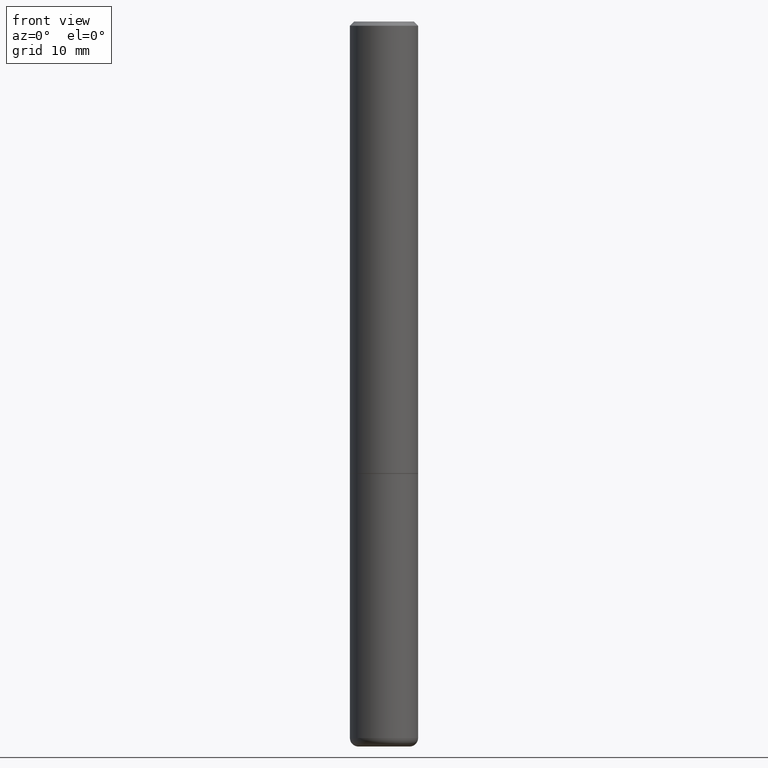
[diagram: clean part render]
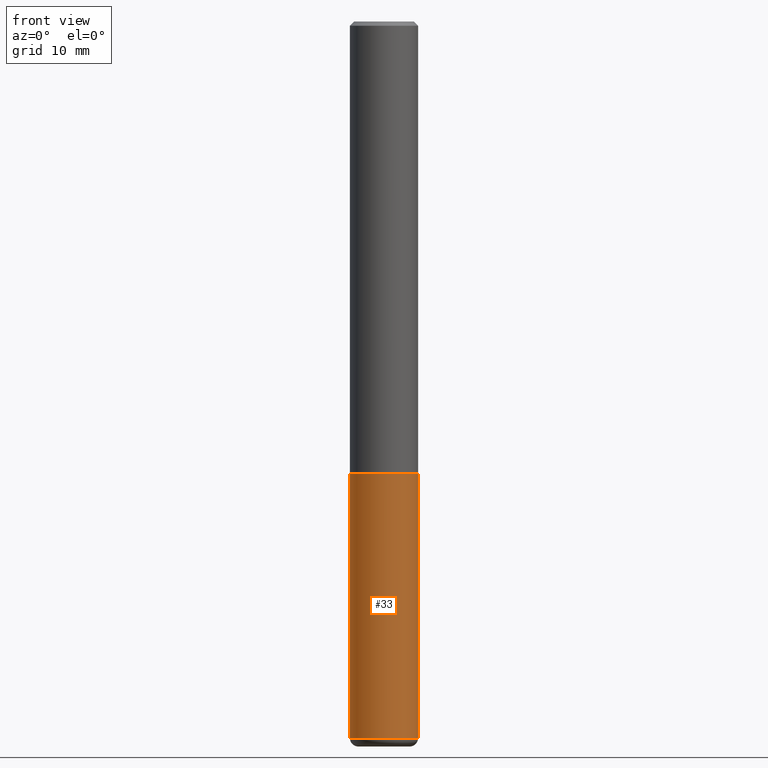
[diagram: same view with one face highlighted and labeled with its STEP entity id]
A machine part, front view. The second image highlights one B-rep face of the part: STEP entity #33.
In plain terms, the highlighted cylindrical surface (edge-blend (fillet) strip) has radius 4.0005 mm, axis along (-0, 0, 1).
Its self-contained STEP definition (entity closure, byte-faithful):
#6 = VECTOR ( 'NONE', #38, 39.37007874015748143 ) ;
#13 = DIRECTION ( 'NONE',  ( -2.445468806185136597E-29, 3.491481338843145583E-15, 1.000000000000000000 ) ) ;
#17 = EDGE_CURVE ( 'NONE', #414, #34, #158, .T. ) ;
#24 = AXIS2_PLACEMENT_3D ( 'NONE', #292, #13, #132 ) ;
#28 = CARTESIAN_POINT ( 'NONE',  ( -0.1575000000000000011, -8.297071213903919899E-15, -2.086699999999999999 ) ) ;
#32 = ORIENTED_EDGE ( 'NONE', *, *, #360, .F. ) ;
#33 = ADVANCED_FACE ( 'NONE', ( #72 ), #167, .T. ) ;
#34 = VERTEX_POINT ( 'NONE', #316 ) ;
#38 = DIRECTION ( 'NONE',  ( -2.445468806185136877E-29, 3.491481338843145188E-15, 1.000000000000000000 ) ) ;
#65 = VERTEX_POINT ( 'NONE', #412 ) ;
#72 = FACE_OUTER_BOUND ( 'NONE', #217, .T. ) ;
#84 = DIRECTION ( 'NONE',  ( -2.445468806185136597E-29, 3.491481338843145583E-15, 1.000000000000000000 ) ) ;
#85 = DIRECTION ( 'NONE',  ( -2.445468806185136597E-29, 3.491481338843145583E-15, 1.000000000000000000 ) ) ;
#113 = CARTESIAN_POINT ( 'NONE',  ( 8.087409888934865187E-29, -1.154667793568816566E-14, -3.307099999999999707 ) ) ;
#115 = DIRECTION ( 'NONE',  ( -2.445468806185136877E-29, 3.491481338843145188E-15, 1.000000000000000000 ) ) ;
#120 = ORIENTED_EDGE ( 'NONE', *, *, #329, .T. ) ;
#121 = VECTOR ( 'NONE', #115, 39.37007874015748143 ) ;
#122 = CARTESIAN_POINT ( 'NONE',  ( 5.102959757866523939E-29, -7.285674109763990928E-15, -2.086699999999999999 ) ) ;
#123 = VERTEX_POINT ( 'NONE', #28 ) ;
#130 = ORIENTED_EDGE ( 'NONE', *, *, #369, .F. ) ;
#132 = DIRECTION ( 'NONE',  ( 1.000000000000000000, -6.982962677686265922E-15, 4.876176775795935232E-29 ) ) ;
#149 = CIRCLE ( 'NONE', #270, 0.1575000000000000011 ) ;
#158 = CIRCLE ( 'NONE', #262, 0.1575000000000000011 ) ;
#167 = CYLINDRICAL_SURFACE ( 'NONE', #24, 0.1575000000000000011 ) ;
#180 = CARTESIAN_POINT ( 'NONE',  ( 0.1575000000000000011, -1.099816621735586889E-15, 7.679978421878598033E-30 ) ) ;
#186 = DIRECTION ( 'NONE',  ( 1.000000000000000000, -6.982962677686261977E-15, 0.000000000000000000 ) ) ;
#217 = EDGE_LOOP ( 'NONE', ( #130, #248, #120, #32 ) ) ;
#244 = DIRECTION ( 'NONE',  ( 1.000000000000000000, -6.982962677686268288E-15, 0.000000000000000000 ) ) ;
#248 = ORIENTED_EDGE ( 'NONE', *, *, #17, .T. ) ;
#262 = AXIS2_PLACEMENT_3D ( 'NONE', #113, #85, #186 ) ;
#270 = AXIS2_PLACEMENT_3D ( 'NONE', #122, #84, #244 ) ;
#289 = CARTESIAN_POINT ( 'NONE',  ( -0.1575000000000000011, 1.119104808822157801E-15, -7.747322767151475583E-30 ) ) ;
#292 = CARTESIAN_POINT ( 'NONE',  ( 0.000000000000000000, 0.000000000000000000, 0.000000000000000000 ) ) ;
#316 = CARTESIAN_POINT ( 'NONE',  ( 0.1574999999999998901, -1.264649455742375235E-14, -3.307099999999999707 ) ) ;
#329 = EDGE_CURVE ( 'NONE', #34, #65, #370, .T. ) ;
#355 = CARTESIAN_POINT ( 'NONE',  ( -0.1574999999999998901, -1.042757312686600805E-14, -3.307099999999999707 ) ) ;
#360 = EDGE_CURVE ( 'NONE', #123, #65, #149, .T. ) ;
#369 = EDGE_CURVE ( 'NONE', #414, #123, #399, .T. ) ;
#370 = LINE ( 'NONE', #180, #121 ) ;
#399 = LINE ( 'NONE', #289, #6 ) ;
#412 = CARTESIAN_POINT ( 'NONE',  ( 0.1575000000000000011, -8.385490731499577619E-15, -2.086699999999999999 ) ) ;
#414 = VERTEX_POINT ( 'NONE', #355 ) ;